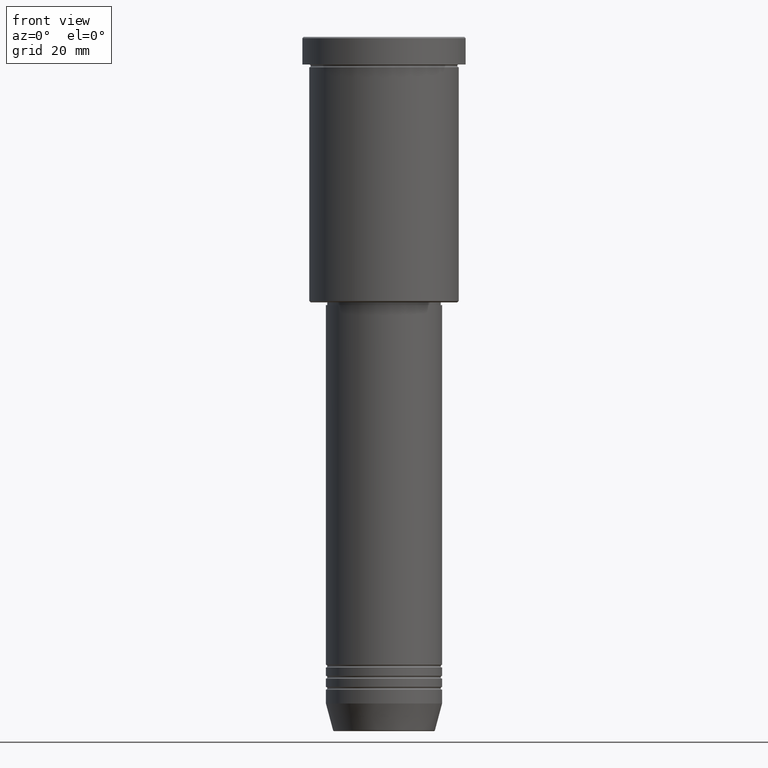
[diagram: clean part render]
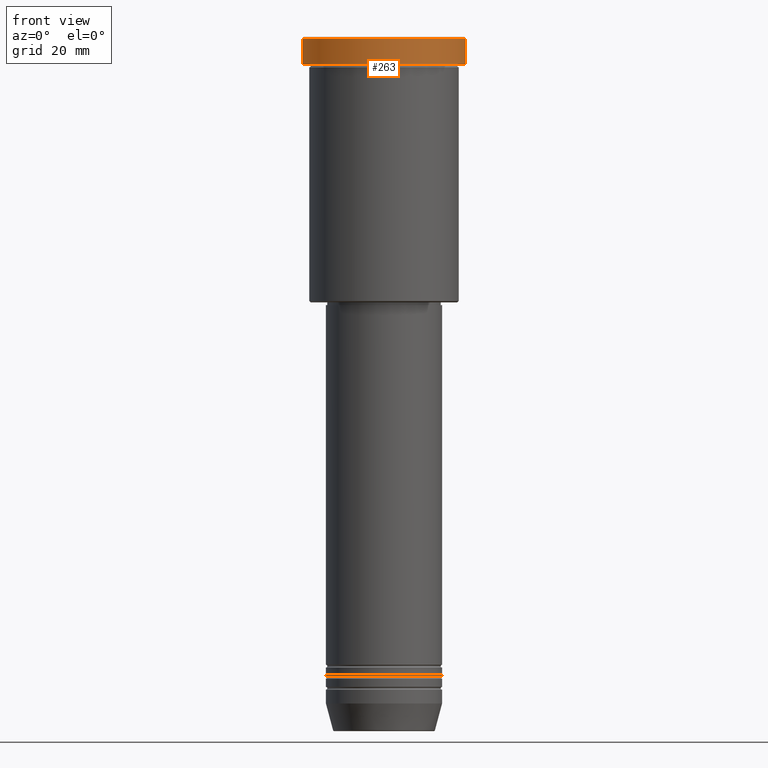
[diagram: same view with one face highlighted and labeled with its STEP entity id]
A machine part, front view. The second image highlights one B-rep face of the part: STEP entity #263.
In plain terms, the highlighted cylindrical surface (partial cylindrical patch) has radius 29.5 mm, axis along (-0, -0, 1).
Its self-contained STEP definition (entity closure, byte-faithful):
#3 = DIRECTION ( 'NONE',  ( 1.000000000000000000, 0.000000000000000000, 0.000000000000000000 ) ) ;
#27 = VERTEX_POINT ( 'NONE', #826 ) ;
#78 = ORIENTED_EDGE ( 'NONE', *, *, #706, .F. ) ;
#91 = CARTESIAN_POINT ( 'NONE',  ( 29.50000000000000000, 0.000000000000000000, -9.999999999999992895 ) ) ;
#143 = AXIS2_PLACEMENT_3D ( 'NONE', #1103, #185, #739 ) ;
#171 = CARTESIAN_POINT ( 'NONE',  ( -29.50000000000000000, 3.612708057484691604E-15, -0.5000000000000559552 ) ) ;
#177 = VERTEX_POINT ( 'NONE', #171 ) ;
#185 = DIRECTION ( 'NONE',  ( 0.000000000000000000, 0.000000000000000000, -1.000000000000000000 ) ) ;
#189 = CARTESIAN_POINT ( 'NONE',  ( 0.000000000000000000, 0.000000000000000000, -9.999999999999992895 ) ) ;
#263 = ADVANCED_FACE ( 'NONE', ( #740 ), #1005, .T. ) ;
#300 = EDGE_CURVE ( 'NONE', #357, #319, #744, .T. ) ;
#319 = VERTEX_POINT ( 'NONE', #641 ) ;
#347 = CIRCLE ( 'NONE', #143, 29.50000000000000000 ) ;
#357 = VERTEX_POINT ( 'NONE', #91 ) ;
#394 = ORIENTED_EDGE ( 'NONE', *, *, #697, .T. ) ;
#444 = VECTOR ( 'NONE', #823, 1000.000000000000000 ) ;
#466 = CARTESIAN_POINT ( 'NONE',  ( 0.000000000000000000, 0.000000000000000000, 0.000000000000000000 ) ) ;
#545 = DIRECTION ( 'NONE',  ( -0.000000000000000000, -0.000000000000000000, 1.000000000000000000 ) ) ;
#550 = DIRECTION ( 'NONE',  ( 1.000000000000000000, 0.000000000000000000, 0.000000000000000000 ) ) ;
#636 = DIRECTION ( 'NONE',  ( -0.000000000000000000, -0.000000000000000000, 1.000000000000000000 ) ) ;
#641 = CARTESIAN_POINT ( 'NONE',  ( 29.50000000000000000, 0.000000000000000000, -0.5000000000000559552 ) ) ;
#668 = VECTOR ( 'NONE', #636, 1000.000000000000000 ) ;
#690 = EDGE_CURVE ( 'NONE', #319, #177, #347, .T. ) ;
#697 = EDGE_CURVE ( 'NONE', #27, #357, #735, .T. ) ;
#706 = EDGE_CURVE ( 'NONE', #27, #177, #921, .T. ) ;
#727 = CARTESIAN_POINT ( 'NONE',  ( 29.50000000000000000, 0.000000000000000000, 0.000000000000000000 ) ) ;
#735 = CIRCLE ( 'NONE', #1151, 29.50000000000000000 ) ;
#739 = DIRECTION ( 'NONE',  ( 1.000000000000000000, 0.000000000000000000, 0.000000000000000000 ) ) ;
#740 = FACE_OUTER_BOUND ( 'NONE', #806, .T. ) ;
#744 = LINE ( 'NONE', #727, #668 ) ;
#806 = EDGE_LOOP ( 'NONE', ( #78, #394, #1065, #1115 ) ) ;
#823 = DIRECTION ( 'NONE',  ( -0.000000000000000000, -0.000000000000000000, 1.000000000000000000 ) ) ;
#826 = CARTESIAN_POINT ( 'NONE',  ( -29.50000000000000000, 3.612708057484691604E-15, -9.999999999999992895 ) ) ;
#833 = DIRECTION ( 'NONE',  ( -0.000000000000000000, -0.000000000000000000, 1.000000000000000000 ) ) ;
#921 = LINE ( 'NONE', #1100, #444 ) ;
#1005 = CYLINDRICAL_SURFACE ( 'NONE', #1052, 29.50000000000000000 ) ;
#1052 = AXIS2_PLACEMENT_3D ( 'NONE', #466, #833, #3 ) ;
#1065 = ORIENTED_EDGE ( 'NONE', *, *, #300, .T. ) ;
#1100 = CARTESIAN_POINT ( 'NONE',  ( -29.50000000000000000, 3.612708057484691604E-15, 0.000000000000000000 ) ) ;
#1103 = CARTESIAN_POINT ( 'NONE',  ( 0.000000000000000000, 0.000000000000000000, -0.5000000000000559552 ) ) ;
#1115 = ORIENTED_EDGE ( 'NONE', *, *, #690, .T. ) ;
#1151 = AXIS2_PLACEMENT_3D ( 'NONE', #189, #545, #550 ) ;